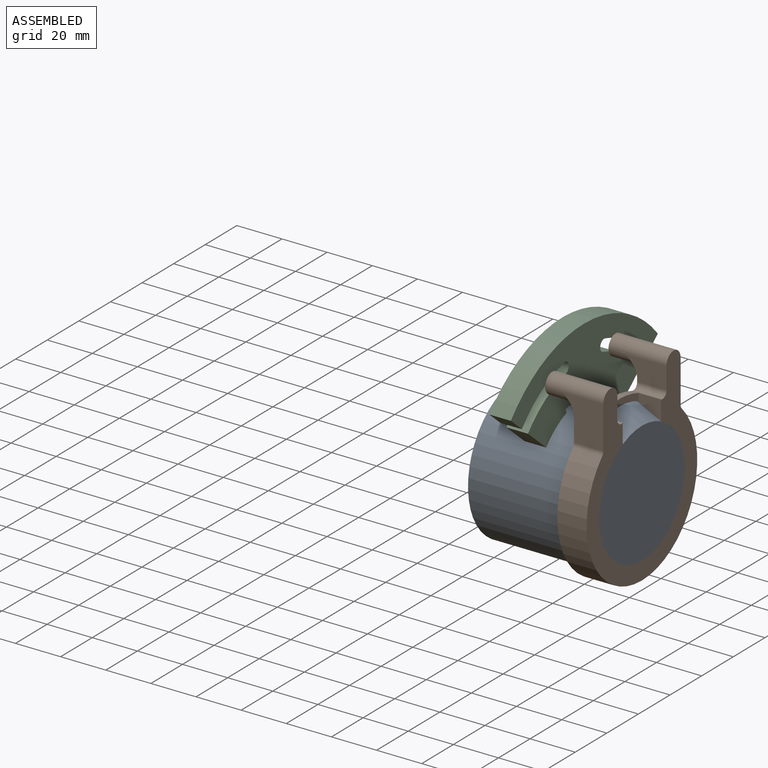
[diagram: assembled view]
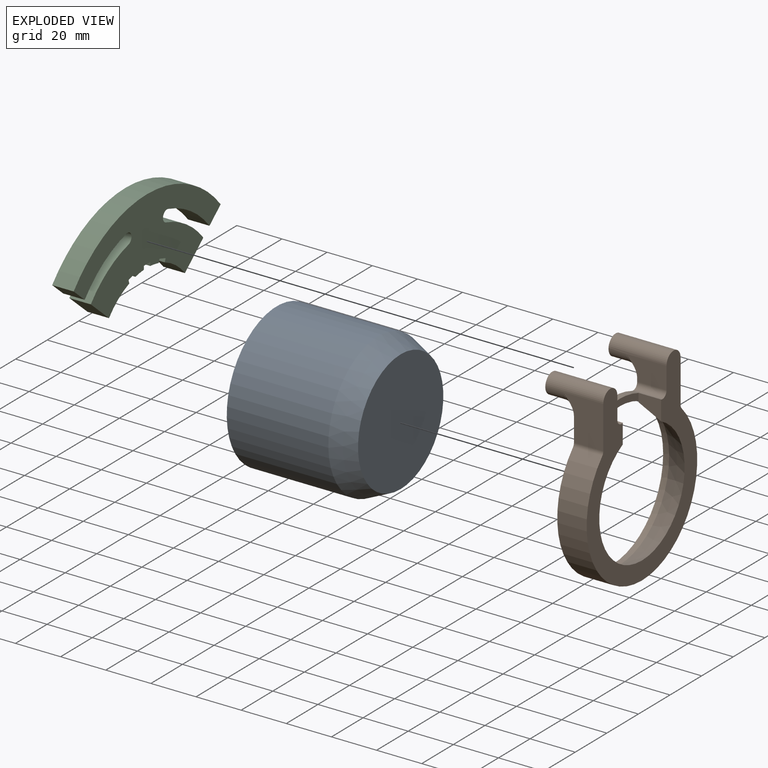
[diagram: exploded view]
GUIDED TOUR — MATED ASSEMBLY (Onshape document dd887e093290ce0ca9e0f697, AutoMate assembly dd887e093290ce0ca9e0f697_0e4d67293c506a9530e50721_bf1a6a40184c004e40d59748_default)

This assembly has 3 components, labeled P0..P2 below (a component is one placed occurrence of a part; the same part can appear more than once), held together by 3 mates. A mate is a constraint between two components; its type names the relative motion it leaves free:
  CYLINDRICAL — leaves both rotation about and translation along the listed axis free,
  PLANAR — leaves sliding in the plane through the listed point (normal = the listed direction) and rotation about that normal free.
Axis/direction vectors are unit vectors and 'through' points are millimeter coordinates, both in the assembly's world frame.

MATES
  1. CYLINDRICAL "Cylindrical 1": P0 <-> P1, axis (1.000, 0.000, 0.000) through (-14.52, -9.20, -5.56) mm
  2. PLANAR "Planar 1": P0 <-> P1, direction (1.000, 0.000, 0.000) through (17.98, -9.20, -5.56) mm
  3. PLANAR "Planar 2": P2 <-> P1, direction (1.000, 0.000, 0.000) through (-7.72, -22.01, 44.60) mm

ASSEMBLY ORDER
  1. P1 — the base component [order heuristic]
  2. P0 — core [order heuristic]
  3. P2 [order verified]
Order-tag legend:
  [order verified] — this step's position reverses a verified removal order: the component was checked to insert without passing through the ones already placed.
  [order heuristic] — the first 2 components form the assembly's core: parts whose collision-free extraction could not be verified, listed in mate-graph order.

Of the 3 components, 2 carry the full construction recipe — the FeatureScript program that regenerates the part's solid from scratch; the rest are supplied as boundary geometry only.
Each toured component is shown spotlighted twice — in the assembled view, then in the exploded view, where a leader line traces a displaced component back to its assembled socket (saturated green if recipe-attached, orange if geometry-only; every other component desaturated gray) — followed by its recipe or geometry summary and the mates that hold it.
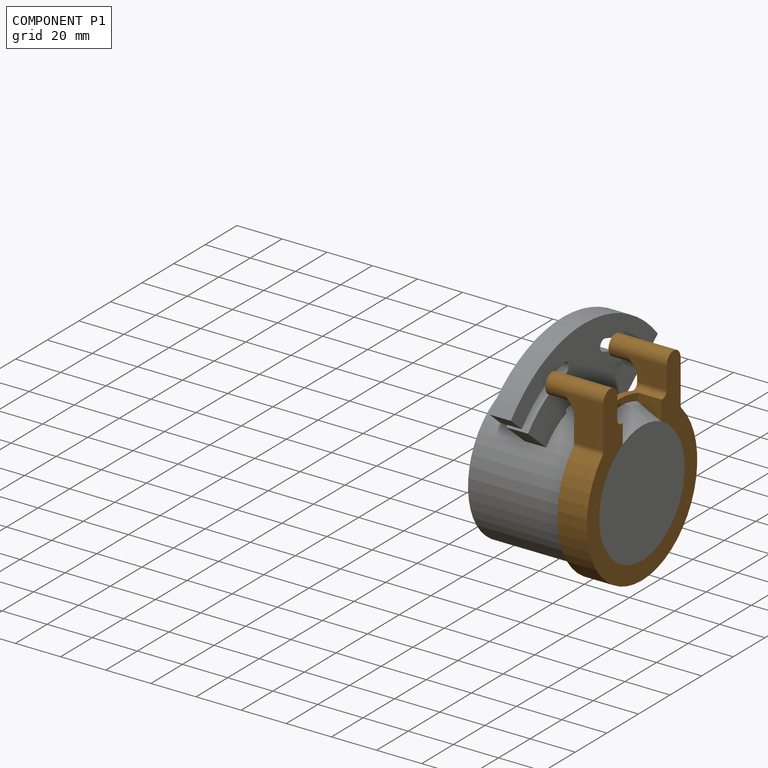
[diagram: component P1 — assembled]
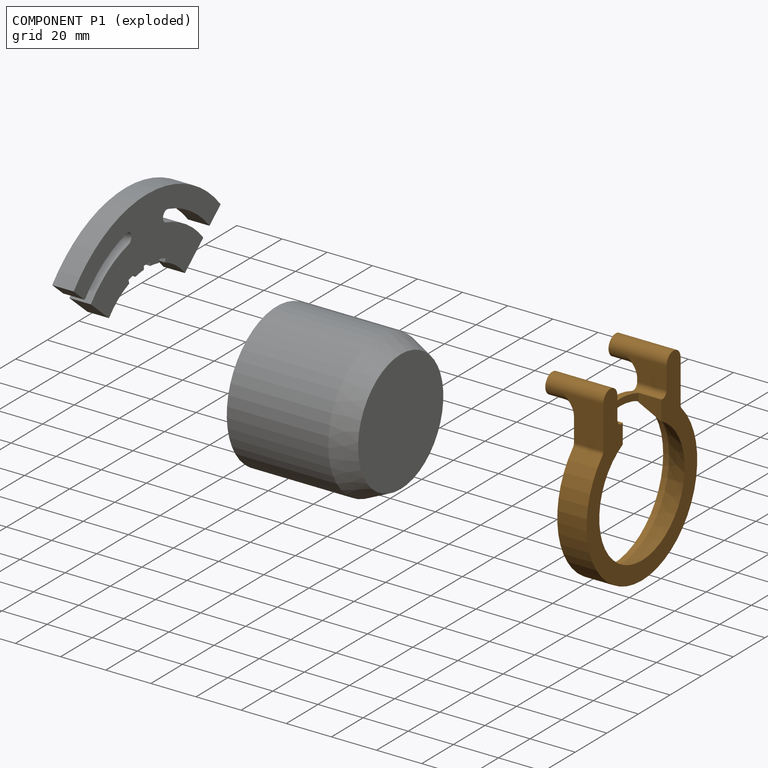
[diagram: component P1 — exploded]
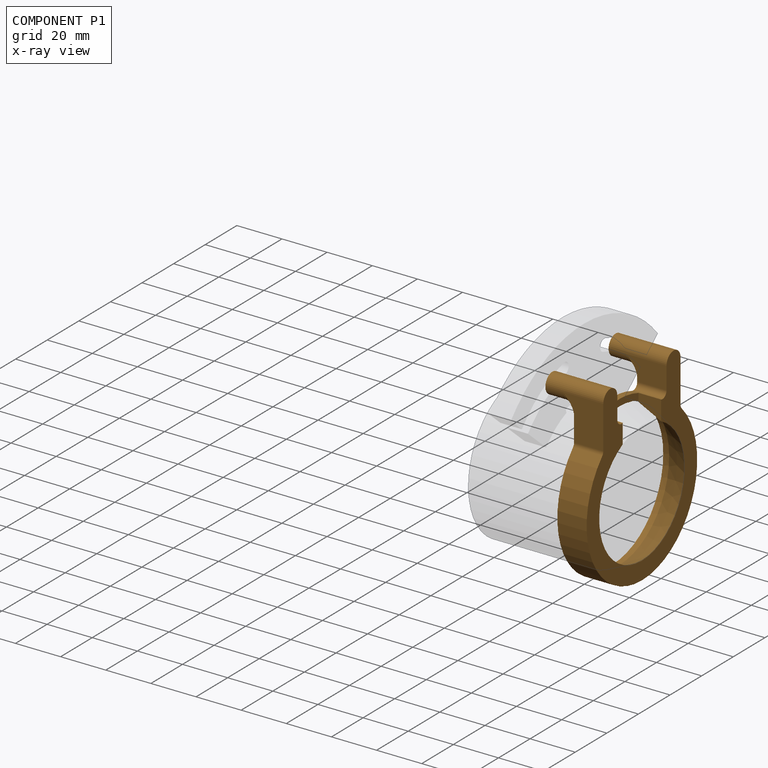
[diagram: component P1 — x-ray view]
COMPONENT P1 — geometry summary (no construction recipe available for this part):
  bounding box: 84.6 x 70.2 x 25.9 mm
  B-rep topology: 1 solid, 28 faces, 140 edges
  volume: 17750 mm^3 (12% of its bounding box)
  symmetry: mirror-symmetric across its y mid-plane
Held by: CYLINDRICAL mate "Cylindrical 1" to P0; PLANAR mate "Planar 1" to P0; PLANAR mate "Planar 2" to P2.
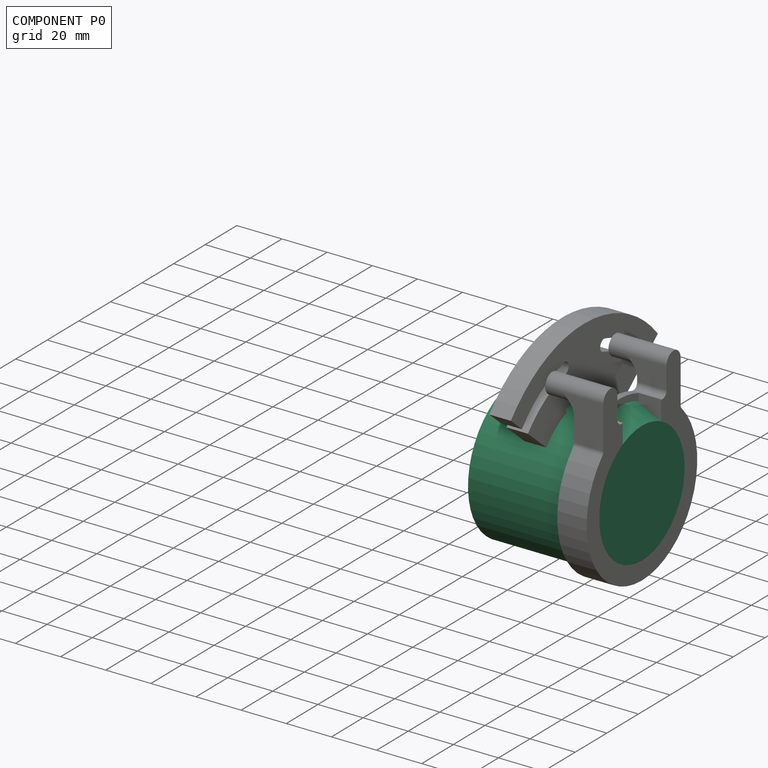
[diagram: component P0 — assembled]
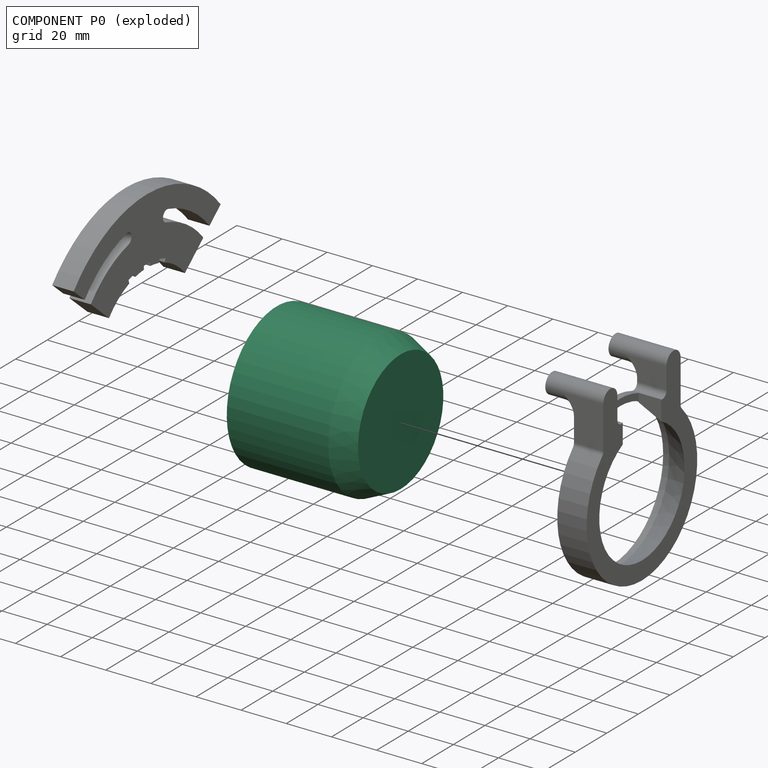
[diagram: component P0 — exploded]
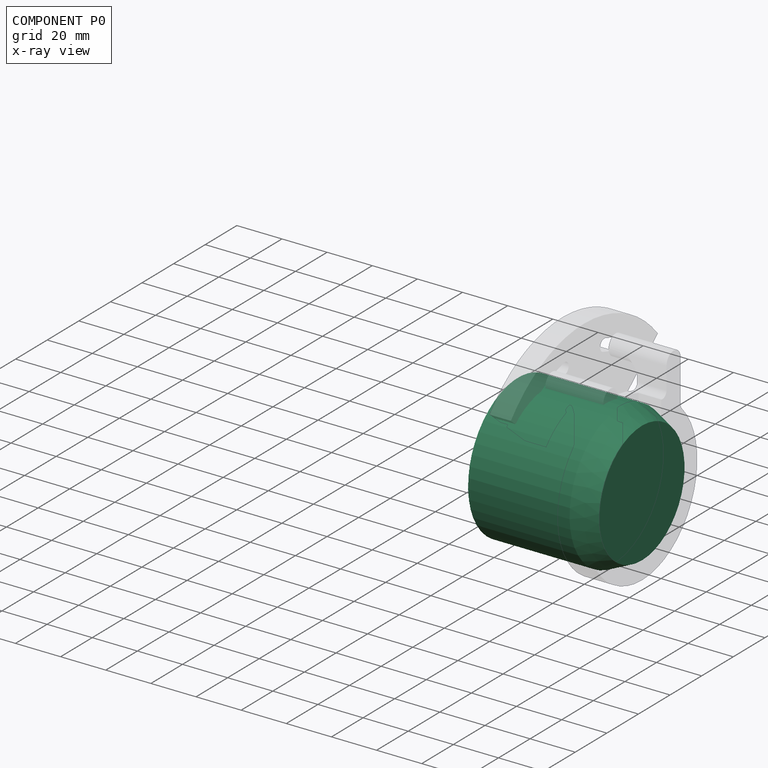
[diagram: component P0 — x-ray view]
COMPONENT P0 — recipe-attached (CADFS 00156118, mesh-verified: the recipe's output STEP matches this component's geometry to below the mesh-comparison resolution (tessellation chordal tolerance ~0.157 mm)).
Held by: CYLINDRICAL mate "Cylindrical 1" to P1; PLANAR mate "Planar 1" to P1.
Construction recipe (FeatureScript — the CAD program that rebuilds this solid; sketch coordinates are in the units given by the * unit suffixes, e.g. mm):

FeatureScript 1511;
import(path : "onshape/std/geometry.fs", version : "1511.0");
import(path : "onshape/std/common.fs", version : "1511.0");
const mm = millimeter;
const VERTEX = EntityType.VERTEX;
const EDGE = EntityType.EDGE;
const FACE = EntityType.FACE;
const BODY = EntityType.BODY;
function v(x, y){return vector(x, y);}
function OD(order){return orderDisambiguation(order);}
function OSD(set){return originalSetDisambiguation(set);}
function TD(topology){return topologyDisambiguation(topology);}
function TDD(query){return trueDependencyDisambiguation(query);}
function sQuery(a, b, c) {return sketchEntityQuery(a, b, c);}

annotation { "Feature Type Name" : "Feature", "Feature Type Description" : "" }
export const myFeature = defineFeature(function(context is Context, id is Id, definition is map)
    precondition{}
    {
        {
            var Q0;
            Q0=qCreatedBy(makeId("Front.planeOp"),FACE);
            var sketch = newSketch(context, id + "F0", { "sketchPlane" : qUnion([Q0])});
            skLineSegment(sketch, "E0", {"start": v(0, 0) * mm, "end": v(0, 31.5) * mm});
            skLineSegment(sketch, "E1", {"start": v(0, 31.5) * mm, "end": v(45, 31.5) * mm});
            skLineSegment(sketch, "E2", {"start": v(45, 31.5) * mm, "end": v(55, 27) * mm});
            skLineSegment(sketch, "E3", {"start": v(55, 27) * mm, "end": v(55, 0) * mm});
            skLineSegment(sketch, "E4", {"start": v(55, 0) * mm, "end": v(0, 0) * mm});
            skSolve(sketch);
        }
        {
            var Q0;
            Q0=makeQuery(id+"F0.imprint","IMPRINT",FACE,{"disambiguationData":[TD([[makeQuery(id+"F0.imprint","IMPRINT",EDGE,{"derivedFrom":sQuery(id+"F0.wireOp",EDGE,"E0")}),-1.0]])]});
            var Q1;
            Q1=sQuery(id+"F0.wireOp",EDGE,"E4");
            revolve(context, id + "F1", {"entities" : qUnion([Q0]), "axis" : qUnion([Q1]), "revolveType" : RevolveType.FULL});
        }
    });
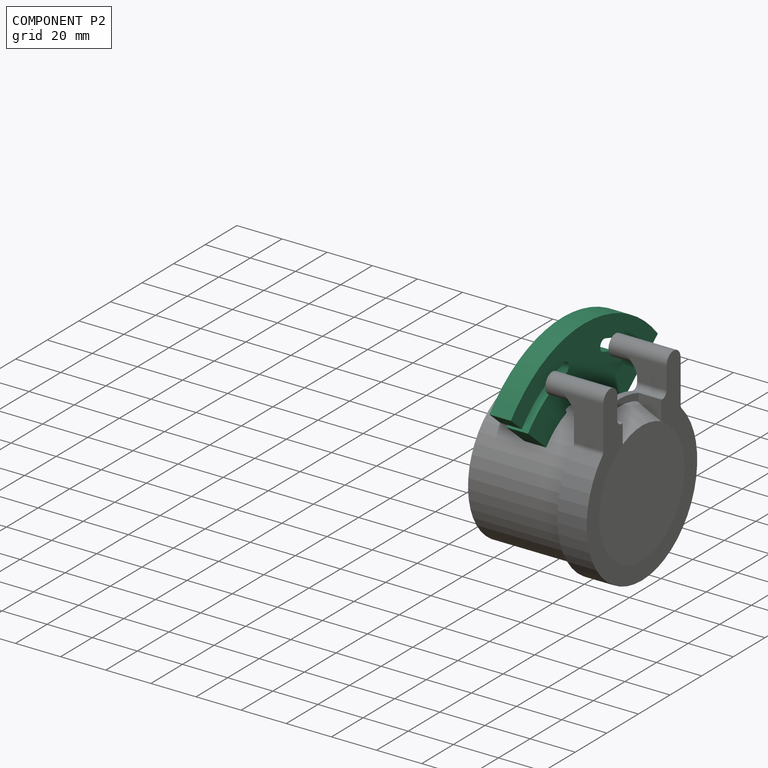
[diagram: component P2 — assembled]
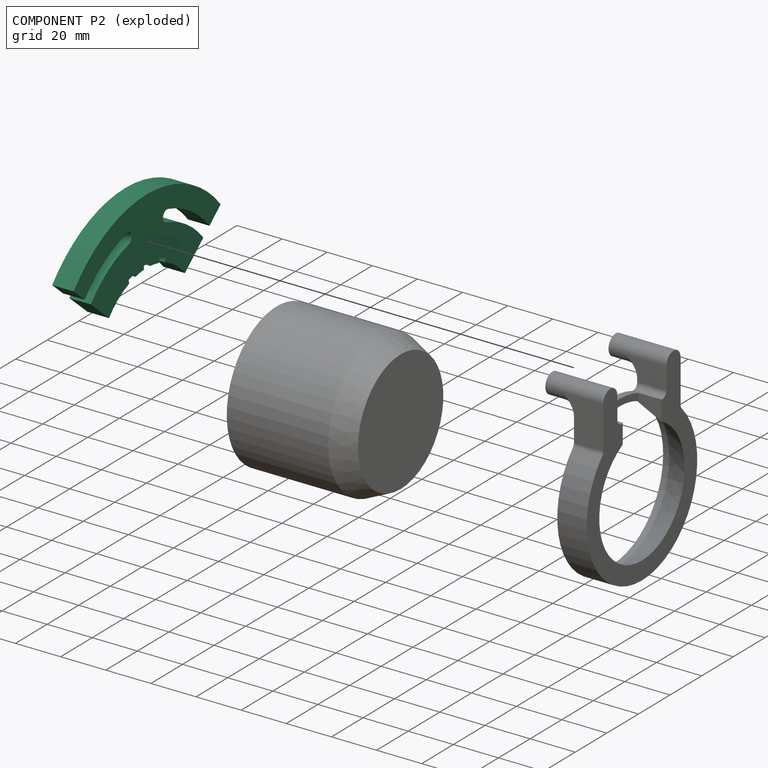
[diagram: component P2 — exploded]
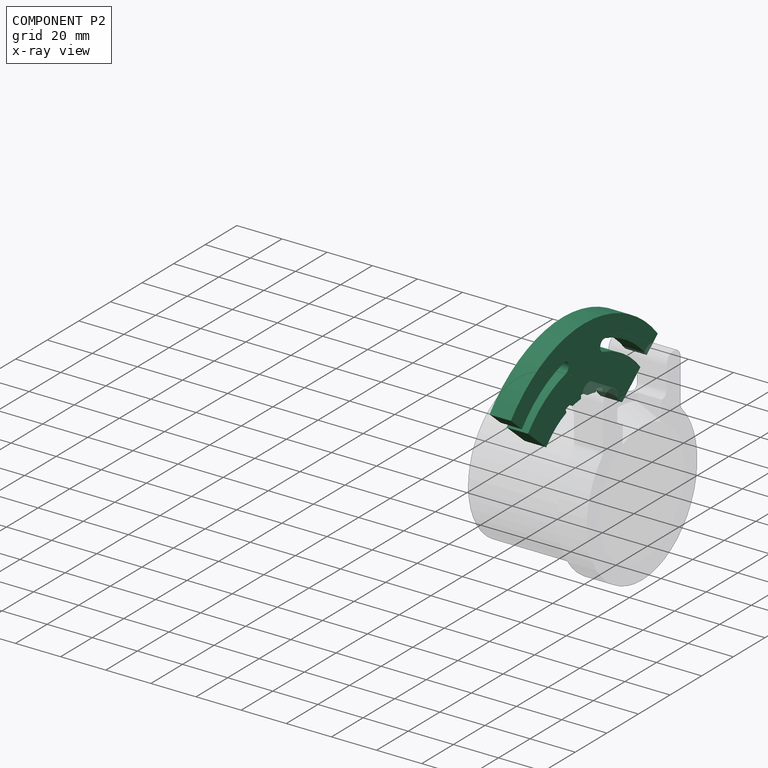
[diagram: component P2 — x-ray view]
COMPONENT P2 — recipe-attached (CADFS 00156120, mesh-verified: the recipe's output STEP matches this component's geometry to below the mesh-comparison resolution (tessellation chordal tolerance ~0.153 mm)).
Held by: PLANAR mate "Planar 2" to P1.
Construction recipe (FeatureScript — the CAD program that rebuilds this solid; sketch coordinates are in the units given by the * unit suffixes, e.g. mm):

FeatureScript 1511;
import(path : "onshape/std/geometry.fs", version : "1511.0");
import(path : "onshape/std/common.fs", version : "1511.0");
const mm = millimeter;
const VERTEX = EntityType.VERTEX;
const EDGE = EntityType.EDGE;
const FACE = EntityType.FACE;
const BODY = EntityType.BODY;
function v(x, y){return vector(x, y);}
function OD(order){return orderDisambiguation(order);}
function OSD(set){return originalSetDisambiguation(set);}
function TD(topology){return topologyDisambiguation(topology);}
function TDD(query){return trueDependencyDisambiguation(query);}
function sQuery(a, b, c) {return sketchEntityQuery(a, b, c);}

annotation { "Feature Type Name" : "Feature", "Feature Type Description" : "" }
export const myFeature = defineFeature(function(context is Context, id is Id, definition is map)
    precondition{}
    {
        {
            var Q0;
            Q0=qCreatedBy(makeId("Right.planeOp"),FACE);
            var sketch = newSketch(context, id + "F0", { "sketchPlane" : qUnion([Q0])});
            skArc(sketch, "E0", {"start": v(24.03, 4.14) * mm, "mid": v(18.2, 9.47) * mm, "end": v(11.24, 13.2) * mm});
            skArc(sketch, "E1", {"start": v(32.07, 21.12) * mm, "mid": v(0.49, 33) * mm, "end": v(-31.32, 21.75) * mm, "construction": true});
            skLineSegment(sketch, "E2.bottom", {"start": v(-2.03, 16.8) * mm, "end": v(2.03, 16.8) * mm, "construction": true});
            skLineSegment(sketch, "E2.top", {"start": v(-2.03, 15.27) * mm, "end": v(-1.94, 15.27) * mm, "construction": true});
            skLineSegment(sketch, "E2.left", {"start": v(-2.03, 16.8) * mm, "end": v(-2.03, 15.27) * mm, "construction": true});
            skLineSegment(sketch, "E2.right", {"start": v(2.03, 16.8) * mm, "end": v(2.03, 15.27) * mm, "construction": true});
            skPoint(sketch, "E2.middle", {"position": v(0, 16.03) * mm});
            skArc(sketch, "E3.MirrorC", {"start": v(11.85, 28.93) * mm, "mid": v(10.03, 32.03) * mm, "end": v(13.13, 33.84) * mm});
            skArc(sketch, "E4.0", {"start": v(35.61, 13.96) * mm, "mid": v(24.88, 23.27) * mm, "end": v(11.85, 28.93) * mm});
            skArc(sketch, "E5.0", {"start": v(39.49, 17.24) * mm, "mid": v(27.59, 27.57) * mm, "end": v(13.13, 33.84) * mm});
            skArc(sketch, "E6", {"start": v(-13.13, 33.84) * mm, "mid": v(-10.03, 32.03) * mm, "end": v(-11.85, 28.93) * mm});
            skArc(sketch, "E7.MirrorCS", {"start": v(-35.61, 13.96) * mm, "mid": v(-24.88, 23.27) * mm, "end": v(-11.85, 28.93) * mm});
            skArc(sketch, "E8.MirrorCS", {"start": v(-39.49, 17.24) * mm, "mid": v(-27.59, 27.57) * mm, "end": v(-13.13, 33.84) * mm});
            skArc(sketch, "E9", {"start": v(46.5, 23.2) * mm, "mid": v(0, 44.74) * mm, "end": v(-46.5, 23.2) * mm});
            skPoint(sketch, "E10.orphan", {"position": v(58.4, 21.55) * mm});
            skPoint(sketch, "E11.start.orphan", {"position": v(-58.4, 21.55) * mm});
            skLineSegment(sketch, "E12", {"start": v(24.03, 4.14) * mm, "end": v(35.61, 13.96) * mm});
            skLineSegment(sketch, "E13.MirrorCS", {"start": v(-24.03, 4.14) * mm, "end": v(-35.61, 13.96) * mm});
            skPoint(sketch, "E14.trimOffspring.end.orphan", {"position": v(50.68, 17.67) * mm});
            skPoint(sketch, "E15.orphan", {"position": v(43.03, 12.55) * mm});
            skPoint(sketch, "E16.end.orphan", {"position": v(38.8, 9.73) * mm});
            skPoint(sketch, "E17.orphan", {"position": v(27, 0) * mm});
            skPoint(sketch, "E18.trimOffspring.end.orphan", {"position": v(-50.68, 17.67) * mm});
            skLineSegment(sketch, "E19.trimOffspring", {"start": v(-39.49, 17.24) * mm, "end": v(-46.5, 23.2) * mm});
            skPoint(sketch, "E20.orphan", {"position": v(-43.03, 12.55) * mm});
            skPoint(sketch, "E21.MirrorCS.end.orphan", {"position": v(-38.8, 9.73) * mm});
            skPoint(sketch, "E21.MirrorCS.start.orphan", {"position": v(-27, 0) * mm});
            skLineSegment(sketch, "E22.trimOffspring", {"start": v(39.49, 17.24) * mm, "end": v(46.5, 23.2) * mm});
            skLineSegment(sketch, "E23.1.0", {"start": v(7.83, 15.92) * mm, "end": v(11.71, 14.71) * mm, "construction": true});
            skLineSegment(sketch, "E23.1.1", {"start": v(7.83, 15.92) * mm, "end": v(7.38, 14.46) * mm, "construction": true});
            skLineSegment(sketch, "E23.1.2", {"start": v(11.71, 14.71) * mm, "end": v(11.26, 13.26) * mm, "construction": true});
            skLineSegment(sketch, "E23.1.3", {"start": v(7.38, 14.46) * mm, "end": v(7.47, 14.43) * mm, "construction": true});
            skLineSegment(sketch, "E23.anchor1", {"start": v(0, -16.23) * mm, "end": v(-2.03, 16.8) * mm, "construction": true});
            skLineSegment(sketch, "E23.anchor2", {"start": v(0, -16.23) * mm, "end": v(7.47, 14.43) * mm, "construction": true});
            skLineSegment(sketch, "E24.MirrorCS", {"start": v(-7.83, 15.92) * mm, "end": v(-7.38, 14.46) * mm, "construction": true});
            skLineSegment(sketch, "E25.MirrorCS", {"start": v(-7.83, 15.92) * mm, "end": v(-11.71, 14.71) * mm, "construction": true});
            skLineSegment(sketch, "E26.MirrorCS", {"start": v(-11.71, 14.71) * mm, "end": v(-11.26, 13.26) * mm, "construction": true});
            skLineSegment(sketch, "E27", {"start": v(0, 44.74) * mm, "end": v(0, -16.23) * mm, "construction": true});
            skLineSegment(sketch, "E28", {"start": v(11.71, 14.71) * mm, "end": v(11.24, 13.2) * mm});
            skLineSegment(sketch, "E29", {"start": v(11.71, 14.71) * mm, "end": v(7.83, 15.92) * mm});
            skLineSegment(sketch, "E30", {"start": v(7.83, 15.92) * mm, "end": v(7, 13.22) * mm});
            skArc(sketch, "E31.trimOffspring", {"start": v(7.45, 14.37) * mm, "mid": v(4.76, 14.9) * mm, "end": v(2.03, 15.2) * mm});
            skLineSegment(sketch, "E32", {"start": v(2.03, 16.8) * mm, "end": v(2.03, 15.2) * mm});
            skLineSegment(sketch, "E33", {"start": v(2.03, 16.8) * mm, "end": v(-2.03, 16.8) * mm});
            skLineSegment(sketch, "E34", {"start": v(-2.03, 16.8) * mm, "end": v(-2.03, 15.2) * mm});
            skLineSegment(sketch, "E35", {"start": v(-7.83, 15.92) * mm, "end": v(-11.71, 14.71) * mm});
            skLineSegment(sketch, "E36", {"start": v(-7.83, 15.92) * mm, "end": v(-7.36, 14.4) * mm});
            skLineSegment(sketch, "E37", {"start": v(-11.71, 14.71) * mm, "end": v(-11.24, 13.2) * mm});
            skArc(sketch, "E38.trimOffspring", {"start": v(-1.93, 15.2) * mm, "mid": v(-4.66, 14.92) * mm, "end": v(-7.36, 14.4) * mm});
            skArc(sketch, "E39.trimOffspring", {"start": v(-11.24, 13.2) * mm, "mid": v(-18.2, 9.47) * mm, "end": v(-24.03, 4.14) * mm});
            skPoint(sketch, "E40.orphan", {"position": v(-7.38, 14.46) * mm});
            skPoint(sketch, "E41.MirrorCS.end.orphan", {"position": v(-11.26, 13.26) * mm});
            skSolve(sketch);
        }
        {
            var Q0;
            Q0 = qSketchRegion(id + "F0", true);
            extrude(context, id + "F1", {"entities" : qUnion([Q0]), "depth" : 3.17 * mm});
        }
        {
            var Q0;
            Q0=makeQuery(id+"F1.opExtrude","CAP_FACE",FACE,{"disambiguationData":[OSD([sQuery(id+"F0.wireOp",EDGE,"E0"),sQuery(id+"F0.wireOp",EDGE,"E3.MirrorC"),sQuery(id+"F0.wireOp",EDGE,"E4.0"),sQuery(id+"F0.wireOp",EDGE,"E5.0"),sQuery(id+"F0.wireOp",EDGE,"E6"),sQuery(id+"F0.wireOp",EDGE,"E7.MirrorCS"),sQuery(id+"F0.wireOp",EDGE,"E8.MirrorCS"),sQuery(id+"F0.wireOp",EDGE,"E9"),sQuery(id+"F0.wireOp",EDGE,"E12"),sQuery(id+"F0.wireOp",EDGE,"E13.MirrorCS"),sQuery(id+"F0.wireOp",EDGE,"E19.trimOffspring"),sQuery(id+"F0.wireOp",EDGE,"E22.trimOffspring")])],"isStart":true});
            var sketch = newSketch(context, id + "F2", { "sketchPlane" : qUnion([Q0])});
            skLineSegment(sketch, "E42.0", {"start": v(-24.03, 4.14) * mm, "end": v(-24.03, 4.14) * mm});
            skLineSegment(sketch, "E43.bottom", {"start": v(2.03, 16.8) * mm, "end": v(-2.03, 16.8) * mm});
            skLineSegment(sketch, "E43.top", {"start": v(2.03, 15.27) * mm, "end": v(-2.03, 15.27) * mm});
            skLineSegment(sketch, "E43.left", {"start": v(2.03, 16.8) * mm, "end": v(2.03, 15.27) * mm});
            skLineSegment(sketch, "E43.right", {"start": v(-2.03, 16.8) * mm, "end": v(-2.03, 15.27) * mm});
            skPoint(sketch, "E43.middle", {"position": v(0, 16.03) * mm});
            skLineSegment(sketch, "E44.1.0", {"start": v(11.71, 14.71) * mm, "end": v(7.83, 15.92) * mm});
            skLineSegment(sketch, "E44.1.1", {"start": v(11.71, 14.71) * mm, "end": v(11.26, 13.26) * mm});
            skLineSegment(sketch, "E44.1.2", {"start": v(11.26, 13.26) * mm, "end": v(7.38, 14.46) * mm});
            skLineSegment(sketch, "E44.1.3", {"start": v(7.83, 15.92) * mm, "end": v(7.38, 14.46) * mm});
            skLineSegment(sketch, "E44.anchor1", {"start": v(0, -16.23) * mm, "end": v(-2.03, 16.8) * mm, "construction": true});
            skLineSegment(sketch, "E44.anchor2", {"start": v(0, -16.23) * mm, "end": v(7.83, 15.92) * mm, "construction": true});
            skLineSegment(sketch, "E45.1.0", {"start": v(2.93, -49.19) * mm, "end": v(6.95, -48.58) * mm});
            skLineSegment(sketch, "E45.1.1", {"start": v(2.93, -49.19) * mm, "end": v(2.7, -47.68) * mm});
            skLineSegment(sketch, "E45.1.2", {"start": v(2.7, -47.68) * mm, "end": v(6.72, -47.07) * mm});
            skLineSegment(sketch, "E45.1.3", {"start": v(6.95, -48.58) * mm, "end": v(6.72, -47.07) * mm});
            skLineSegment(sketch, "E45.2.0", {"start": v(-7.83, 15.92) * mm, "end": v(-11.71, 14.71) * mm});
            skLineSegment(sketch, "E45.2.1", {"start": v(-7.83, 15.92) * mm, "end": v(-7.38, 14.46) * mm});
            skLineSegment(sketch, "E45.2.2", {"start": v(-7.38, 14.46) * mm, "end": v(-11.26, 13.26) * mm});
            skLineSegment(sketch, "E45.2.3", {"start": v(-11.71, 14.71) * mm, "end": v(-11.26, 13.26) * mm});
            skLineSegment(sketch, "E45.anchor2", {"start": v(0, -16.23) * mm, "end": v(-11.71, 14.71) * mm, "construction": true});
            skSolve(sketch);
        }
        {
            var Q0;
            Q0=makeQuery(id+"F2.imprint","IMPRINT",FACE,{"disambiguationData":[TD([[makeQuery(id+"F2.imprint","IMPRINT",EDGE,{"derivedFrom":sQuery(id+"F2.wireOp",EDGE,"E45.2.0")}),1.0]])]});
            var Q1;
            Q1=makeQuery(id+"F2.imprint","IMPRINT",FACE,{"disambiguationData":[TD([[makeQuery(id+"F2.imprint","IMPRINT",EDGE,{"derivedFrom":sQuery(id+"F2.wireOp",EDGE,"E43.bottom")}),1.0]])]});
            var Q2;
            Q2=makeQuery(id+"F2.imprint","IMPRINT",FACE,{"disambiguationData":[TD([[makeQuery(id+"F2.imprint","IMPRINT",EDGE,{"derivedFrom":sQuery(id+"F2.wireOp",EDGE,"E44.1.0")}),1.0]])]});
            extrude(context, id + "F3", {"entities" : qUnion([Q0, Q1, Q2]), "operationType" : NewBodyOperationType.ADD, "depth" : 6.35 * mm});
        }
    });
PROVENANCE & LICENSES
Assembly (occurrences, transforms, mates, per-part STEP geometry): AutoMate dataset, Zenodo record 7776208, CC0.
Construction recipes: CADFS (HuggingFace VladPyatov/CADFS, CC-BY-4.0, layered over the ABC dataset), FeatureScript reconstruction programs keyed by ABC model id.
Join: ABC meta listings map ABC model id -> Onshape documentId; within a shared document, parts are matched by geometric signature (bounding-box dims + volume at 0.1% relative tolerance, exact B-rep face/solid counts).
Verification: 2 of this assembly's 3 components carry a recipe attachment, and every attachment is mesh-verified: the CADFS STEP and the AutoMate member STEP were compared as meshes in their shared local frame (symmetric sampled-point-to-mesh distance); worst across the 2 attachments: below the mesh-comparison resolution (tessellation chordal tolerance ~0.157 mm) on a 105 mm part.
Renders: orthographic iso camera (az 35 / el 25); the floor grid conveys scale (grid pitch printed in each image; no ruler). In the exploded view each component is displaced by its stored offset vector: the offsets alone carry the explosion direction (mate normal/axis signs are not orientation cues and do not encode it), and separation distances are assigned per mate-chain, not proportionally to assembly-order depth.
